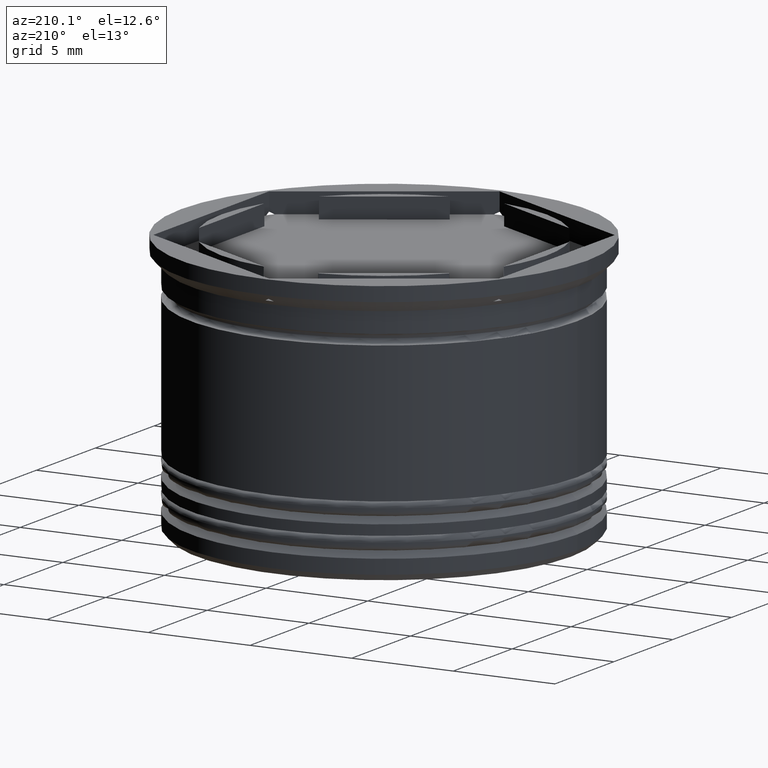
[diagram: clean part render]
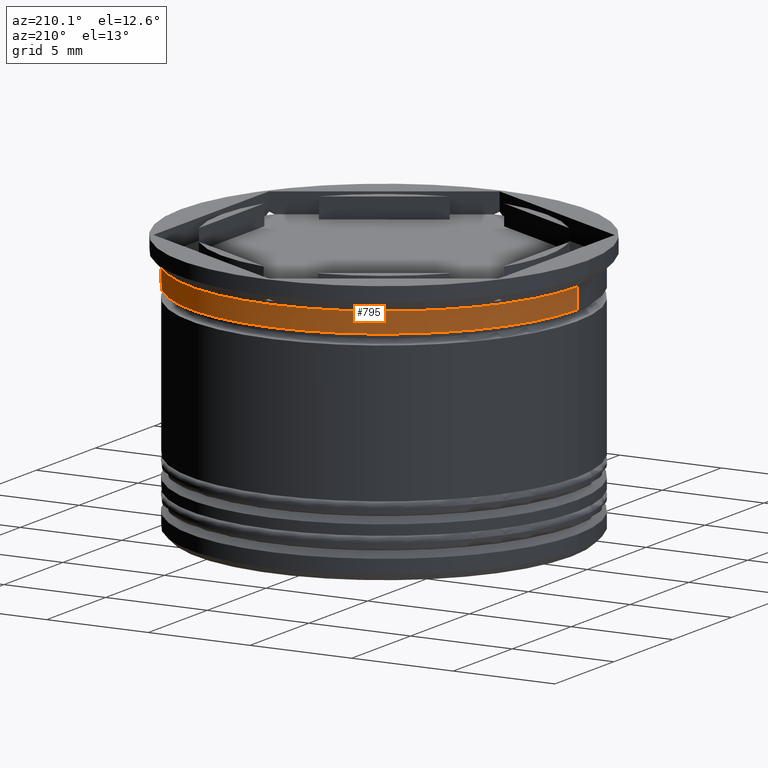
[diagram: same view with one face highlighted and labeled with its STEP entity id]
A machine part, auxiliary view. The second image highlights one B-rep face of the part: STEP entity #795.
In plain terms, the highlighted cylindrical surface (partial cylindrical patch) has radius 9.5 mm, axis along (-0, -0, 1).
Its self-contained STEP definition (entity closure, byte-faithful):
#170 = LINE ( 'NONE', #1359, #1941 ) ;
#250 = VERTEX_POINT ( 'NONE', #1589 ) ;
#259 = CYLINDRICAL_SURFACE ( 'NONE', #466, 9.499999999999998224 ) ;
#267 = CARTESIAN_POINT ( 'NONE',  ( 0.000000000000000000, 0.000000000000000000, 0.000000000000000000 ) ) ;
#282 = VERTEX_POINT ( 'NONE', #1233 ) ;
#290 = AXIS2_PLACEMENT_3D ( 'NONE', #1841, #346, #1529 ) ;
#346 = DIRECTION ( 'NONE',  ( -0.000000000000000000, -0.000000000000000000, 1.000000000000000000 ) ) ;
#409 = VERTEX_POINT ( 'NONE', #1971 ) ;
#466 = AXIS2_PLACEMENT_3D ( 'NONE', #267, #1919, #1955 ) ;
#512 = EDGE_CURVE ( 'NONE', #250, #282, #170, .T. ) ;
#625 = ORIENTED_EDGE ( 'NONE', *, *, #1393, .F. ) ;
#711 = AXIS2_PLACEMENT_3D ( 'NONE', #1642, #803, #2019 ) ;
#766 = FACE_OUTER_BOUND ( 'NONE', #1462, .T. ) ;
#795 = ADVANCED_FACE ( 'NONE', ( #766 ), #259, .T. ) ;
#803 = DIRECTION ( 'NONE',  ( -0.000000000000000000, -0.000000000000000000, 1.000000000000000000 ) ) ;
#815 = ORIENTED_EDGE ( 'NONE', *, *, #1246, .F. ) ;
#917 = CARTESIAN_POINT ( 'NONE',  ( 9.499999999999998224, 0.000000000000000000, 0.000000000000000000 ) ) ;
#1179 = CIRCLE ( 'NONE', #290, 9.499999999999998224 ) ;
#1233 = CARTESIAN_POINT ( 'NONE',  ( -9.499999999999998224, 1.163414459189985288E-15, -1.199999999999999067 ) ) ;
#1246 = EDGE_CURVE ( 'NONE', #2126, #409, #1299, .T. ) ;
#1254 = CARTESIAN_POINT ( 'NONE',  ( 9.499999999999998224, 0.000000000000000000, -2.199999999999999734 ) ) ;
#1272 = VECTOR ( 'NONE', #1614, 1000.000000000000000 ) ;
#1299 = LINE ( 'NONE', #917, #1272 ) ;
#1359 = CARTESIAN_POINT ( 'NONE',  ( -9.499999999999998224, 1.163414459189985288E-15, 0.000000000000000000 ) ) ;
#1393 = EDGE_CURVE ( 'NONE', #409, #282, #1759, .T. ) ;
#1462 = EDGE_LOOP ( 'NONE', ( #1549, #1816, #625, #815 ) ) ;
#1529 = DIRECTION ( 'NONE',  ( 1.000000000000000000, 0.000000000000000000, 0.000000000000000000 ) ) ;
#1549 = ORIENTED_EDGE ( 'NONE', *, *, #1966, .T. ) ;
#1589 = CARTESIAN_POINT ( 'NONE',  ( -9.499999999999998224, 1.163414459189985288E-15, -2.199999999999999734 ) ) ;
#1614 = DIRECTION ( 'NONE',  ( -0.000000000000000000, -0.000000000000000000, 1.000000000000000000 ) ) ;
#1642 = CARTESIAN_POINT ( 'NONE',  ( 0.000000000000000000, 0.000000000000000000, -1.199999999999999067 ) ) ;
#1759 = CIRCLE ( 'NONE', #711, 9.499999999999998224 ) ;
#1816 = ORIENTED_EDGE ( 'NONE', *, *, #512, .T. ) ;
#1841 = CARTESIAN_POINT ( 'NONE',  ( 0.000000000000000000, 0.000000000000000000, -2.199999999999999734 ) ) ;
#1919 = DIRECTION ( 'NONE',  ( -0.000000000000000000, -0.000000000000000000, 1.000000000000000000 ) ) ;
#1941 = VECTOR ( 'NONE', #2150, 1000.000000000000000 ) ;
#1955 = DIRECTION ( 'NONE',  ( 1.000000000000000000, 0.000000000000000000, 0.000000000000000000 ) ) ;
#1966 = EDGE_CURVE ( 'NONE', #2126, #250, #1179, .T. ) ;
#1971 = CARTESIAN_POINT ( 'NONE',  ( 9.499999999999998224, 0.000000000000000000, -1.199999999999999067 ) ) ;
#2019 = DIRECTION ( 'NONE',  ( 1.000000000000000000, 0.000000000000000000, 0.000000000000000000 ) ) ;
#2126 = VERTEX_POINT ( 'NONE', #1254 ) ;
#2150 = DIRECTION ( 'NONE',  ( -0.000000000000000000, -0.000000000000000000, 1.000000000000000000 ) ) ;